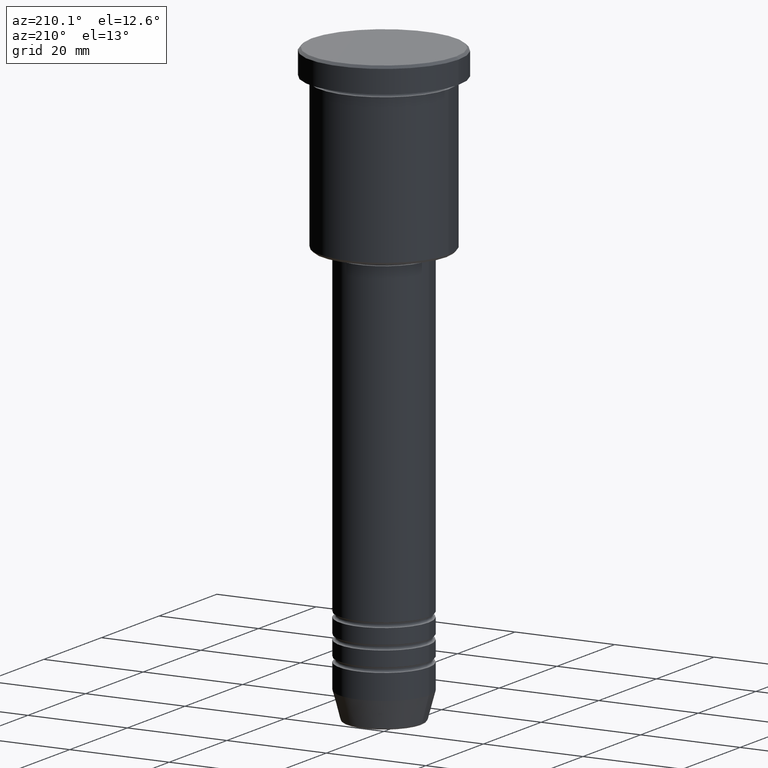
[diagram: clean part render]
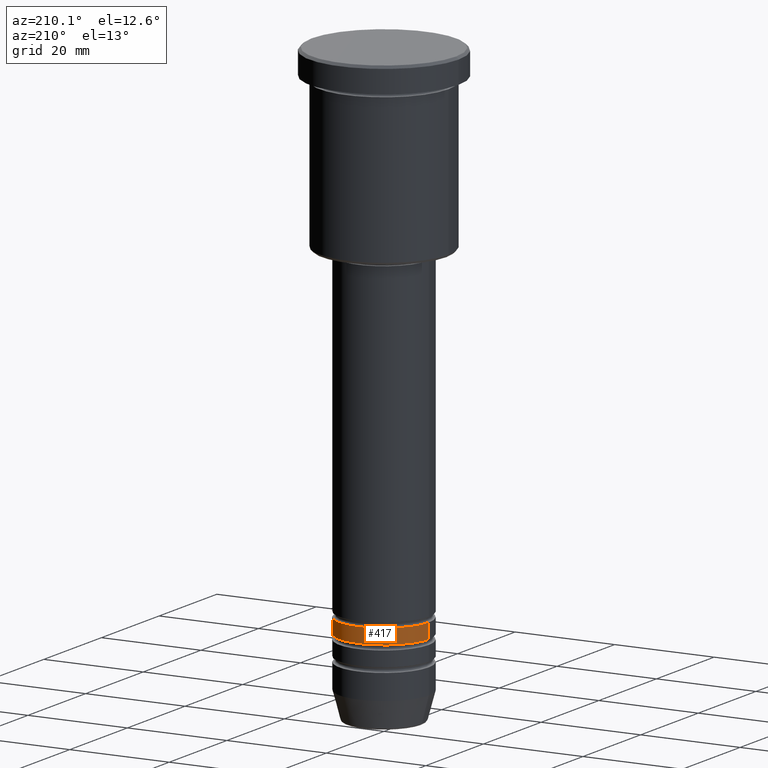
[diagram: same view with one face highlighted and labeled with its STEP entity id]
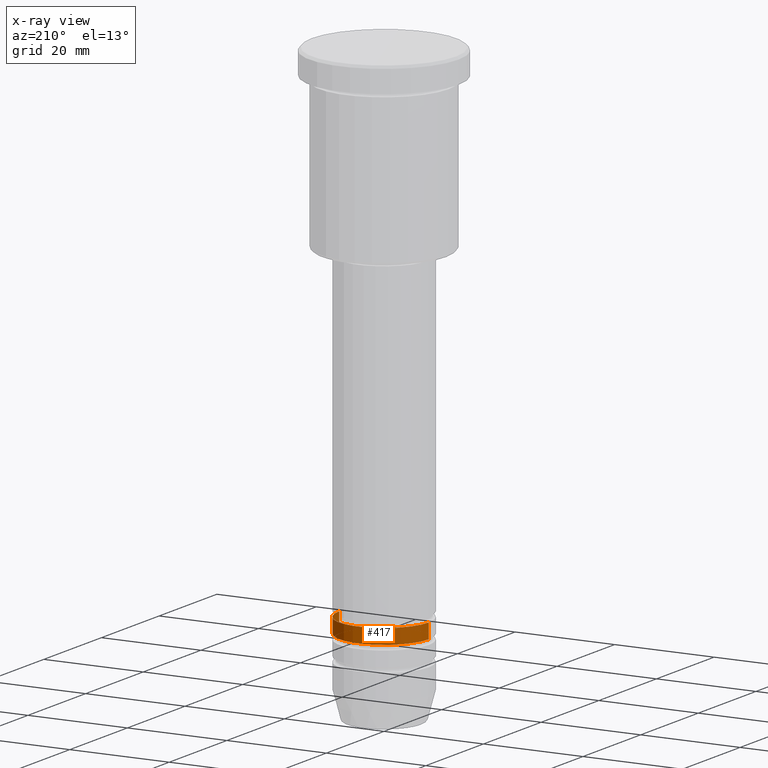
[diagram: x-ray of the same camera — body ghosted, the highlighted face saturated]
A machine part, auxiliary view. The second image highlights one B-rep face of the part: STEP entity #417.
The next image is the same camera in x-ray: the body ghosted, the highlighted face saturated — about 0% of this face is hidden behind the body in this view.
In plain terms, the highlighted cylindrical surface (partial cylindrical patch) has radius 9 mm, axis along (-0, -0, 1).
Its self-contained STEP definition (entity closure, byte-faithful):
#36 = ORIENTED_EDGE ( 'NONE', *, *, #979, .F. ) ;
#62 = CARTESIAN_POINT ( 'NONE',  ( 0.000000000000000000, 0.000000000000000000, -101.4999999999999858 ) ) ;
#97 = CIRCLE ( 'NONE', #728, 9.000000000000001776 ) ;
#240 = DIRECTION ( 'NONE',  ( 1.000000000000000000, 0.000000000000000000, 0.000000000000000000 ) ) ;
#249 = DIRECTION ( 'NONE',  ( -0.000000000000000000, -0.000000000000000000, 1.000000000000000000 ) ) ;
#306 = LINE ( 'NONE', #940, #559 ) ;
#336 = EDGE_CURVE ( 'NONE', #591, #1162, #306, .T. ) ;
#372 = DIRECTION ( 'NONE',  ( -0.000000000000000000, -0.000000000000000000, 1.000000000000000000 ) ) ;
#417 = ADVANCED_FACE ( 'NONE', ( #476 ), #1028, .T. ) ;
#422 = ORIENTED_EDGE ( 'NONE', *, *, #727, .F. ) ;
#451 = ORIENTED_EDGE ( 'NONE', *, *, #336, .T. ) ;
#472 = DIRECTION ( 'NONE',  ( -0.000000000000000000, -0.000000000000000000, 1.000000000000000000 ) ) ;
#476 = FACE_OUTER_BOUND ( 'NONE', #1014, .T. ) ;
#502 = EDGE_CURVE ( 'NONE', #1105, #591, #97, .T. ) ;
#507 = CARTESIAN_POINT ( 'NONE',  ( 0.000000000000000000, 0.000000000000000000, -104.4999999999999858 ) ) ;
#541 = DIRECTION ( 'NONE',  ( -0.000000000000000000, -0.000000000000000000, 1.000000000000000000 ) ) ;
#559 = VECTOR ( 'NONE', #472, 1000.000000000000000 ) ;
#586 = CIRCLE ( 'NONE', #953, 9.000000000000000000 ) ;
#591 = VERTEX_POINT ( 'NONE', #892 ) ;
#634 = LINE ( 'NONE', #995, #833 ) ;
#727 = EDGE_CURVE ( 'NONE', #1105, #1083, #634, .T. ) ;
#728 = AXIS2_PLACEMENT_3D ( 'NONE', #507, #249, #869 ) ;
#749 = CARTESIAN_POINT ( 'NONE',  ( -9.000000000000000000, 1.102182119232617714E-15, -101.4999999999999858 ) ) ;
#772 = DIRECTION ( 'NONE',  ( 1.000000000000000000, 0.000000000000000000, 0.000000000000000000 ) ) ;
#807 = DIRECTION ( 'NONE',  ( -0.000000000000000000, -0.000000000000000000, 1.000000000000000000 ) ) ;
#819 = ORIENTED_EDGE ( 'NONE', *, *, #502, .T. ) ;
#832 = AXIS2_PLACEMENT_3D ( 'NONE', #952, #372, #772 ) ;
#833 = VECTOR ( 'NONE', #541, 1000.000000000000000 ) ;
#843 = CARTESIAN_POINT ( 'NONE',  ( 9.000000000000000000, 0.000000000000000000, -101.4999999999999858 ) ) ;
#869 = DIRECTION ( 'NONE',  ( 1.000000000000000000, 0.000000000000000000, 0.000000000000000000 ) ) ;
#892 = CARTESIAN_POINT ( 'NONE',  ( -9.000000000000001776, 1.102182119232617911E-15, -104.4999999999999858 ) ) ;
#940 = CARTESIAN_POINT ( 'NONE',  ( -9.000000000000001776, 1.102182119232617911E-15, 0.000000000000000000 ) ) ;
#952 = CARTESIAN_POINT ( 'NONE',  ( 0.000000000000000000, 0.000000000000000000, 0.000000000000000000 ) ) ;
#953 = AXIS2_PLACEMENT_3D ( 'NONE', #62, #807, #240 ) ;
#979 = EDGE_CURVE ( 'NONE', #1083, #1162, #586, .T. ) ;
#992 = CARTESIAN_POINT ( 'NONE',  ( 9.000000000000001776, 0.000000000000000000, -104.4999999999999858 ) ) ;
#995 = CARTESIAN_POINT ( 'NONE',  ( 9.000000000000001776, 0.000000000000000000, 0.000000000000000000 ) ) ;
#1014 = EDGE_LOOP ( 'NONE', ( #819, #451, #36, #422 ) ) ;
#1028 = CYLINDRICAL_SURFACE ( 'NONE', #832, 9.000000000000001776 ) ;
#1083 = VERTEX_POINT ( 'NONE', #843 ) ;
#1105 = VERTEX_POINT ( 'NONE', #992 ) ;
#1162 = VERTEX_POINT ( 'NONE', #749 ) ;